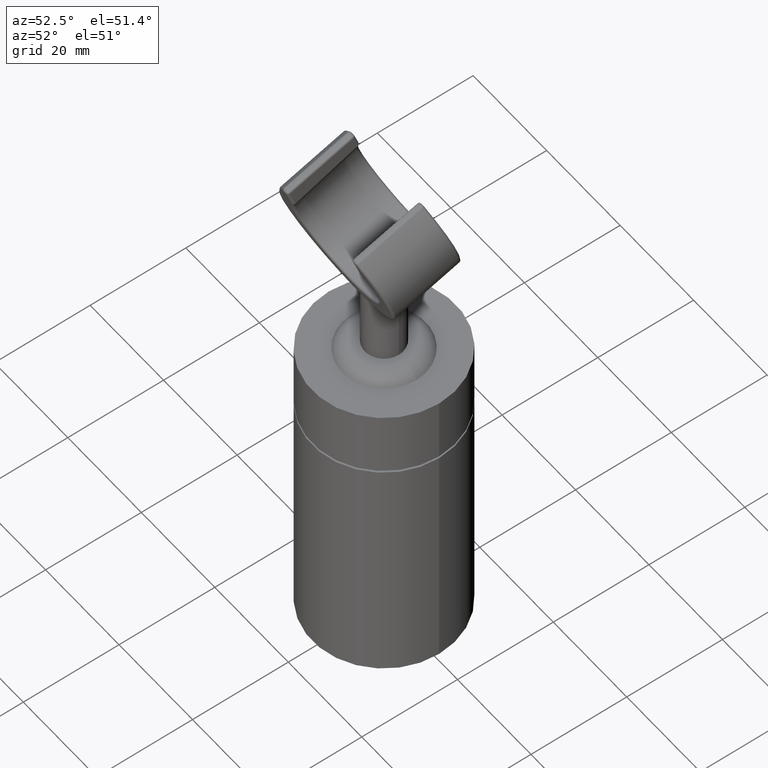
[diagram: clean part render]
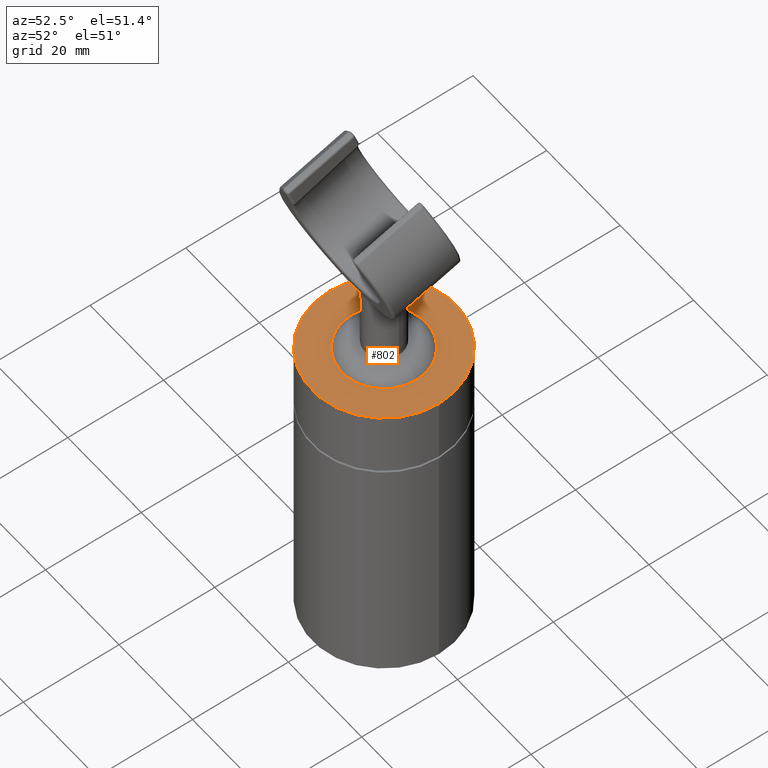
[diagram: same view with one face highlighted and labeled with its STEP entity id]
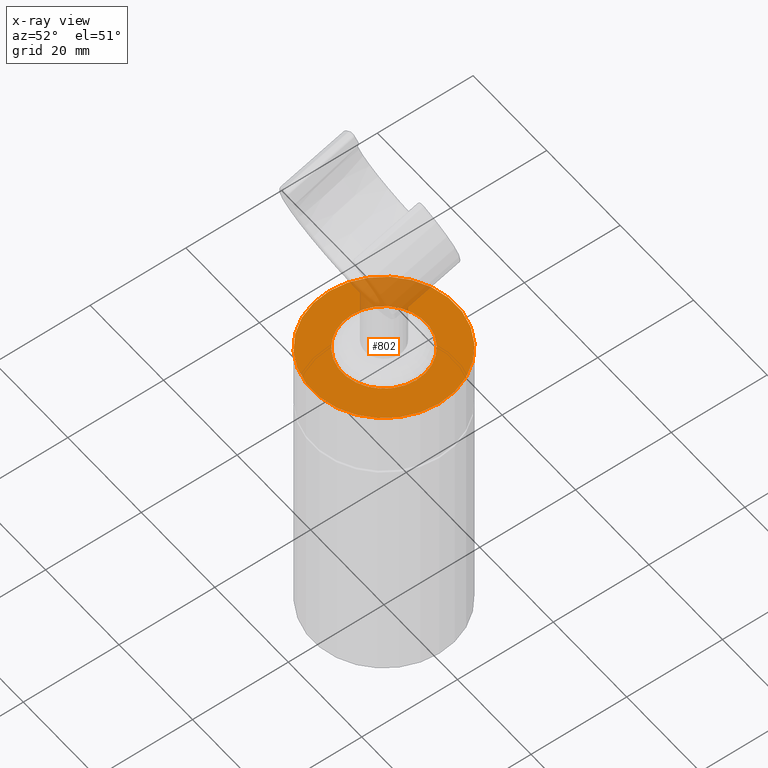
[diagram: x-ray of the same camera — body ghosted, the highlighted face saturated]
A machine part, auxiliary view. The second image highlights one B-rep face of the part: STEP entity #802.
The next image is the same camera in x-ray: the body ghosted, the highlighted face saturated — about 14% of this face is hidden behind the body in this view.
In plain terms, the highlighted planar face has unit normal (0, 0, 1).
Its self-contained STEP definition (entity closure, byte-faithful):
#46=CARTESIAN_POINT('',(-1.221585182149E-14,0.E0,1.45E1));
#47=DIRECTION('',(0.E0,0.E0,1.E0));
#48=DIRECTION('',(1.E0,0.E0,0.E0));
#49=AXIS2_PLACEMENT_3D('',#46,#47,#48);
#51=CARTESIAN_POINT('',(-1.221585182149E-14,0.E0,1.45E1));
#52=DIRECTION('',(0.E0,0.E0,-1.E0));
#53=DIRECTION('',(1.E0,0.E0,0.E0));
#54=AXIS2_PLACEMENT_3D('',#51,#52,#53);
#64=CARTESIAN_POINT('',(-1.221585182149E-14,0.E0,1.45E1));
#65=DIRECTION('',(0.E0,0.E0,-1.E0));
#66=DIRECTION('',(1.E0,0.E0,0.E0));
#67=AXIS2_PLACEMENT_3D('',#64,#65,#66);
#69=CARTESIAN_POINT('',(-1.221585182149E-14,0.E0,1.45E1));
#70=DIRECTION('',(0.E0,0.E0,1.E0));
#71=DIRECTION('',(1.E0,0.E0,0.E0));
#72=AXIS2_PLACEMENT_3D('',#69,#70,#71);
#605=CARTESIAN_POINT('',(8.75E0,0.E0,1.45E1));
#607=VERTEX_POINT('',#605);
#608=CARTESIAN_POINT('',(1.5E1,0.E0,1.45E1));
#610=VERTEX_POINT('',#608);
#621=CARTESIAN_POINT('',(-8.75E0,0.E0,1.45E1));
#623=VERTEX_POINT('',#621);
#624=CARTESIAN_POINT('',(-1.5E1,0.E0,1.45E1));
#626=VERTEX_POINT('',#624);
#787=CARTESIAN_POINT('',(-1.221585182149E-14,0.E0,1.45E1));
#788=DIRECTION('',(0.E0,0.E0,1.E0));
#789=DIRECTION('',(-1.E0,0.E0,0.E0));
#790=AXIS2_PLACEMENT_3D('',#787,#788,#789);
#791=PLANE('',#790);
#793=ORIENTED_EDGE('',*,*,#792,.T.);
#795=ORIENTED_EDGE('',*,*,#794,.F.);
#796=EDGE_LOOP('',(#793,#795));
#797=FACE_OUTER_BOUND('',#796,.F.);
#798=ORIENTED_EDGE('',*,*,#775,.T.);
#799=ORIENTED_EDGE('',*,*,#752,.F.);
#800=EDGE_LOOP('',(#798,#799));
#801=FACE_BOUND('',#800,.F.);
#802=ADVANCED_FACE('',(#797,#801),#791,.T.);
#50=CIRCLE('',#49,8.75E0);
#55=CIRCLE('',#54,8.75E0);
#68=CIRCLE('',#67,1.5E1);
#73=CIRCLE('',#72,1.5E1);
#752=EDGE_CURVE('',#607,#623,#55,.T.);
#775=EDGE_CURVE('',#607,#623,#50,.T.);
#792=EDGE_CURVE('',#610,#626,#68,.T.);
#794=EDGE_CURVE('',#610,#626,#73,.T.);